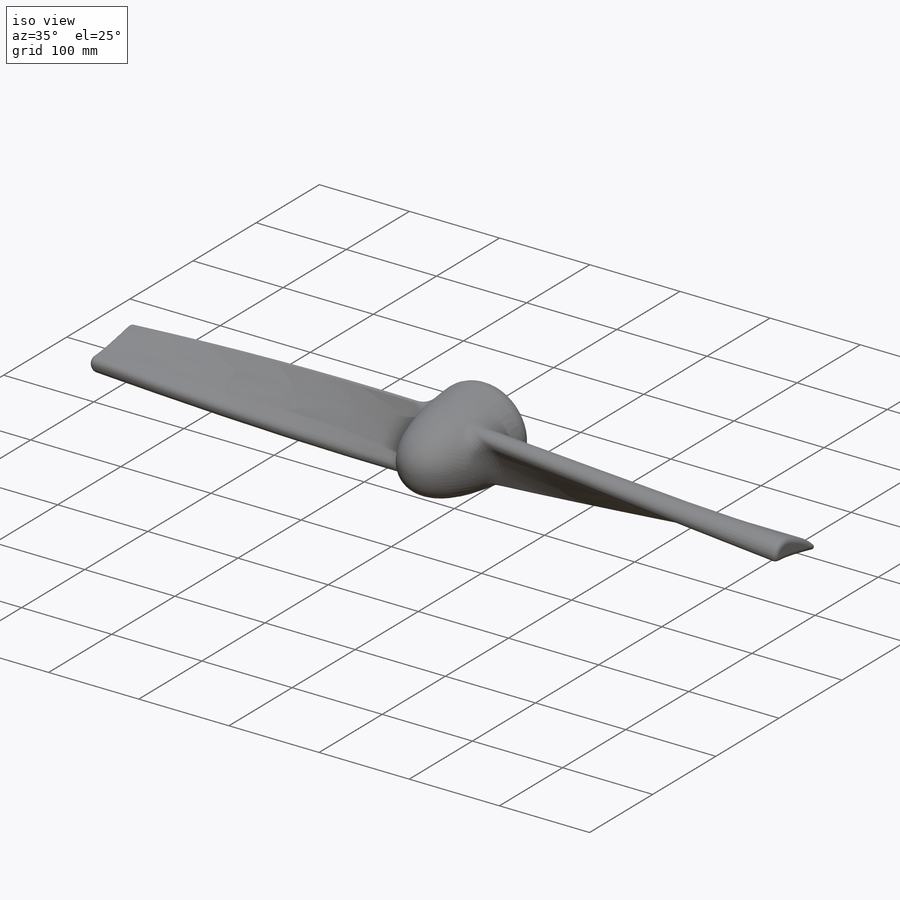
[diagram: iso view]
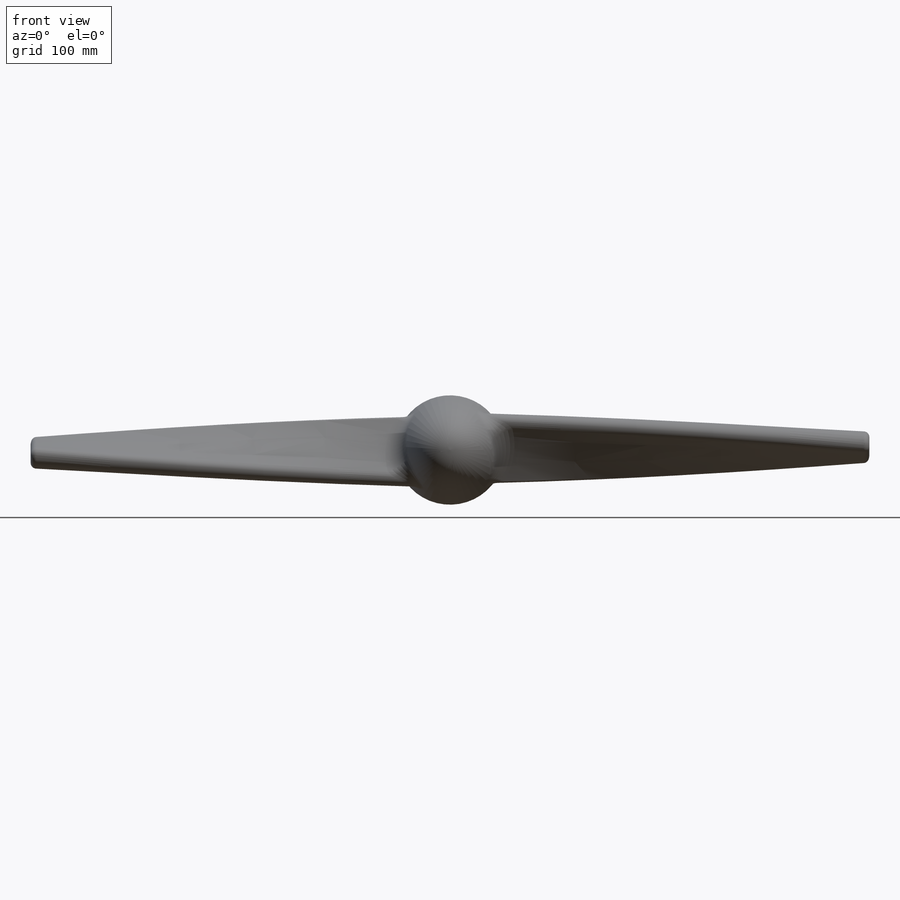
[diagram: front view]
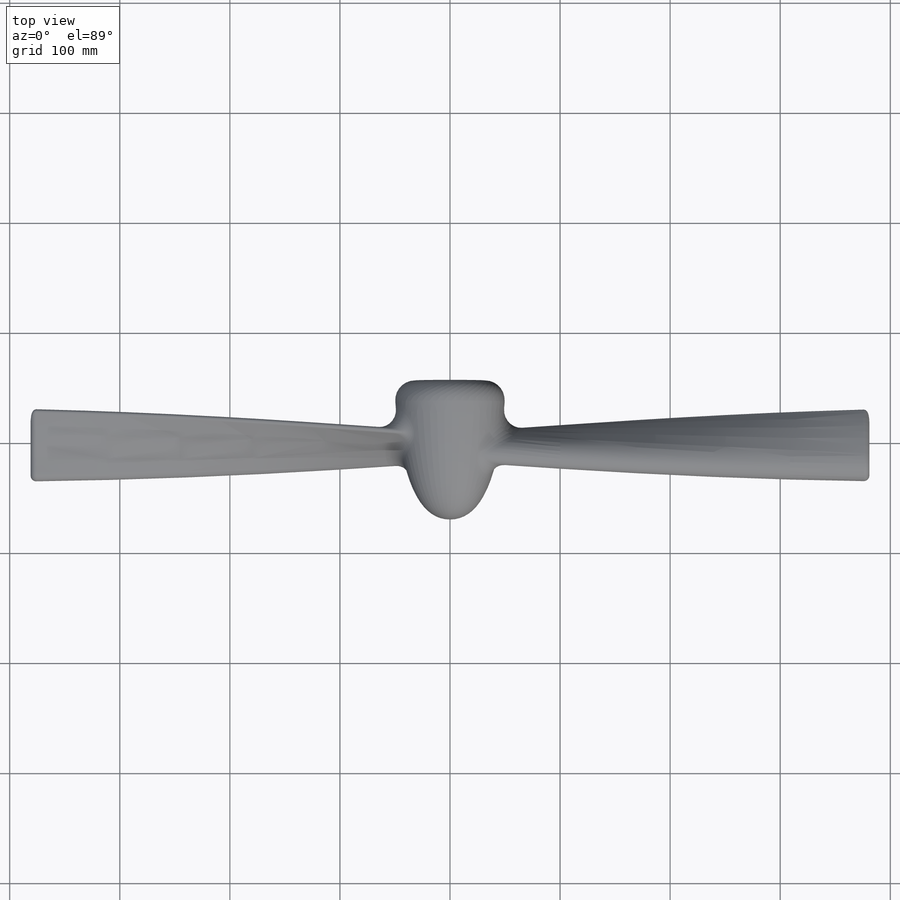
[diagram: top view]
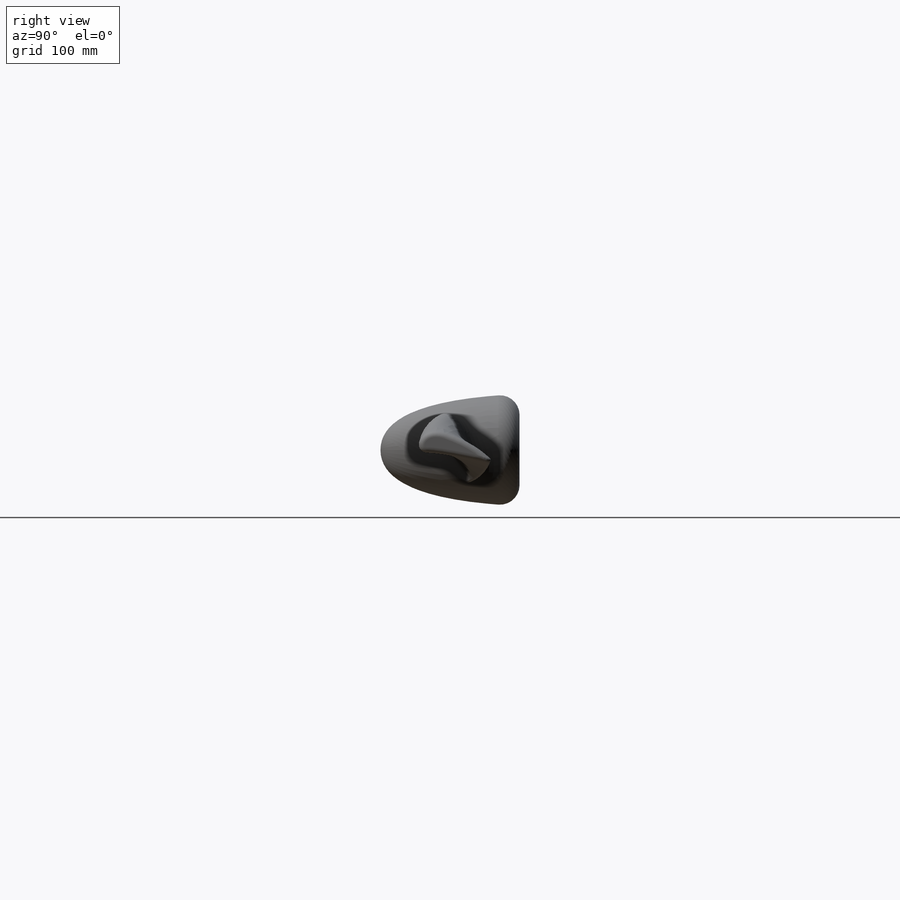
[diagram: right view]
SOLIDWORKS PART (.sldprt)
format: sldprt  version: not decoded by parser v0  size: 521,216 bytes
history: native  units: mm
features: sketch x3, fillet x3, material x1, sweep x1, move_body x1, pattern_circular x1, revolve x1 (+16 scaffold rows collapsed)
feature tree (27):
  scaffold x16  (default folders/planes/origin — collapsed)
  material  "Material <not specified>"
  sketch  "Sketch3"  dims[D1=381.0mm]
  sketch  "Sketch4"
  sweep  "Sweep2"
  fillet  "Fillet3"  Radius=2.54mm
  fillet  "Fillet8"  Radius=5.08mm
  move_body  "Body-Move/Copy1"
  pattern_circular  "CirPattern1"  Count=2 Angle=180deg
  sketch  "Sketch6"  dims[D1=50.8mm]
  revolve  "Revolve1"  Angle=360deg
  fillet  "Fillet6"  Radius=17.78mm
decode coverage: 7 of 10 modeling features carry decoded parameters
note: suppression state not decoded; provenance and decode notes live in map.json
